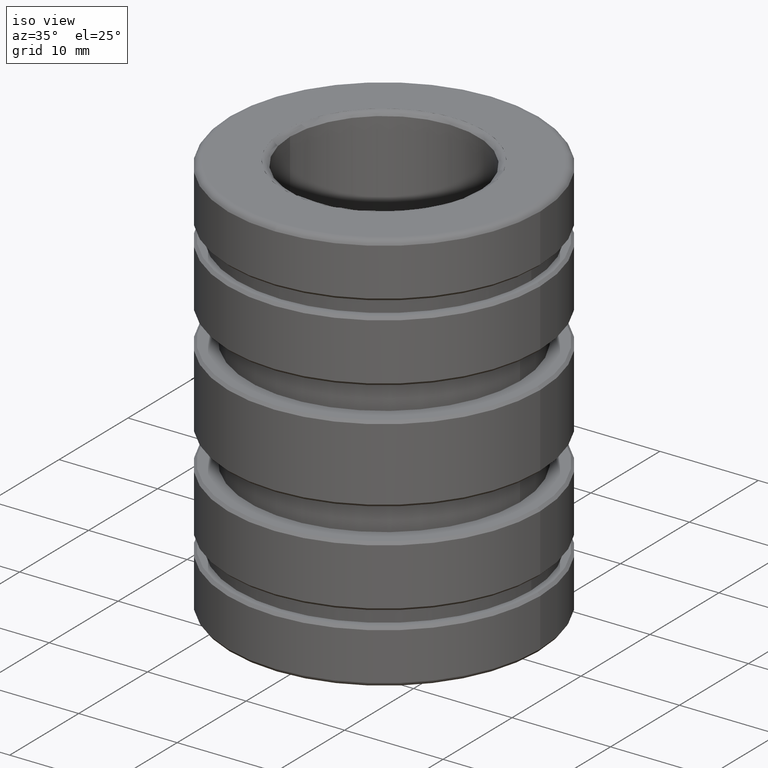
[diagram: clean part render]
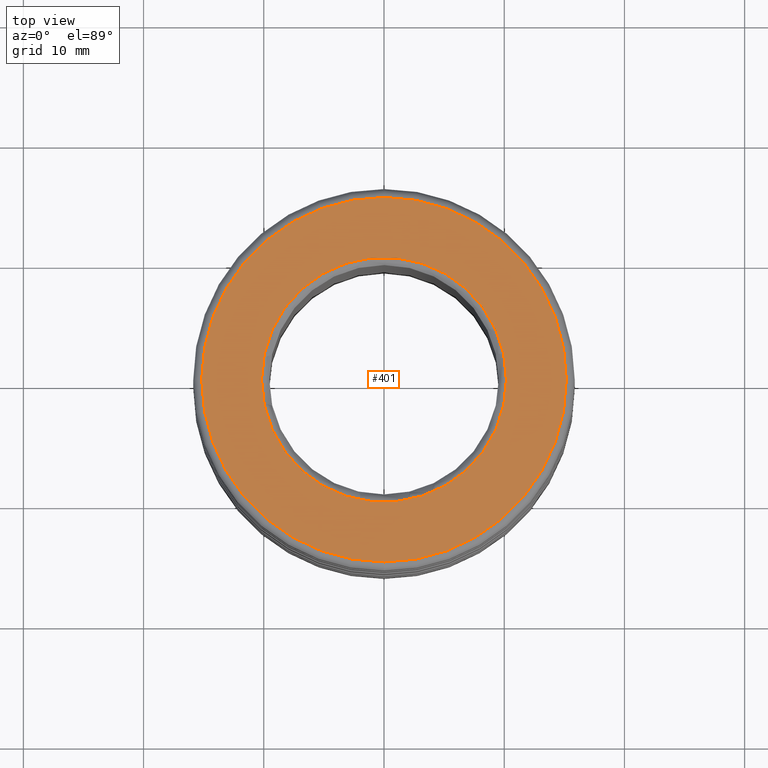
[diagram: tour spotlight — one face highlighted and labeled with its STEP entity id]
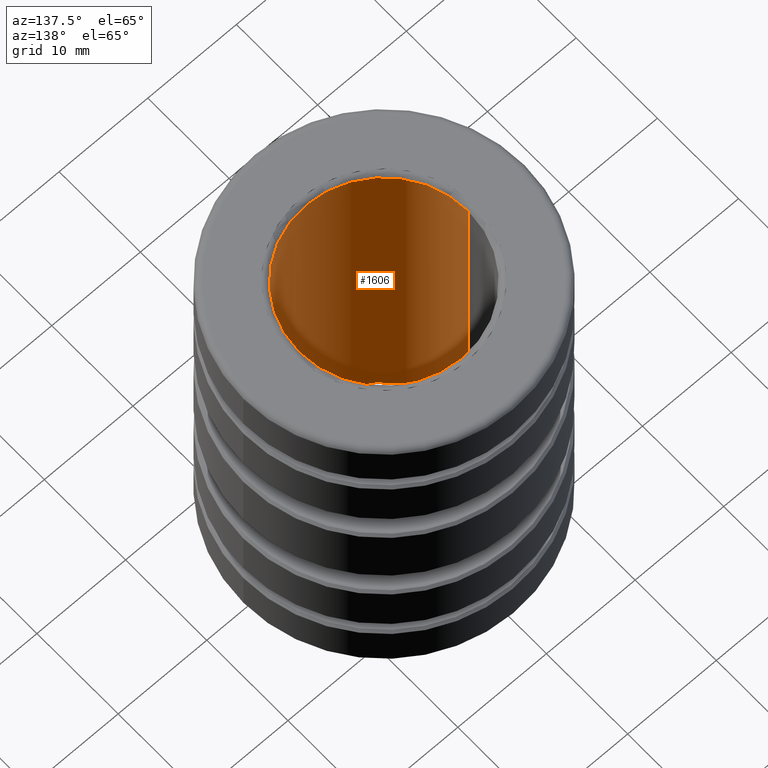
[diagram: tour spotlight — one face highlighted and labeled with its STEP entity id]
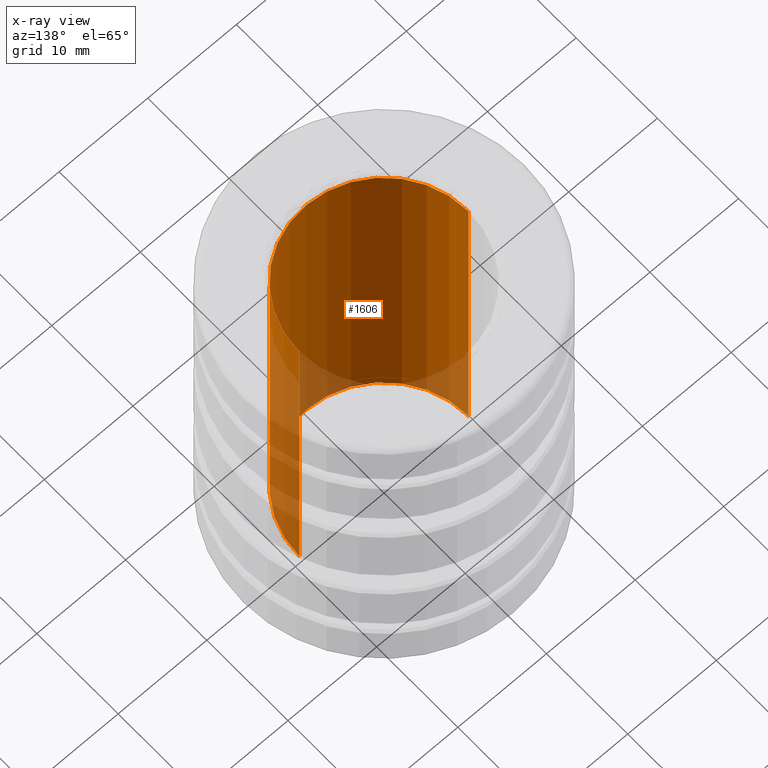
[diagram: x-ray of the same camera — body ghosted, this tour face saturated]
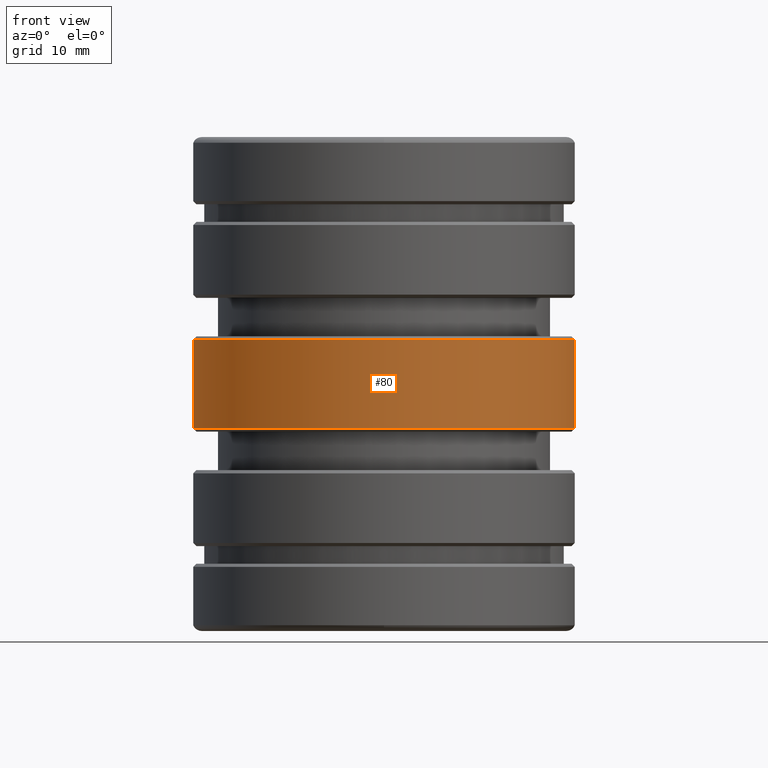
[diagram: tour spotlight — one face highlighted and labeled with its STEP entity id]
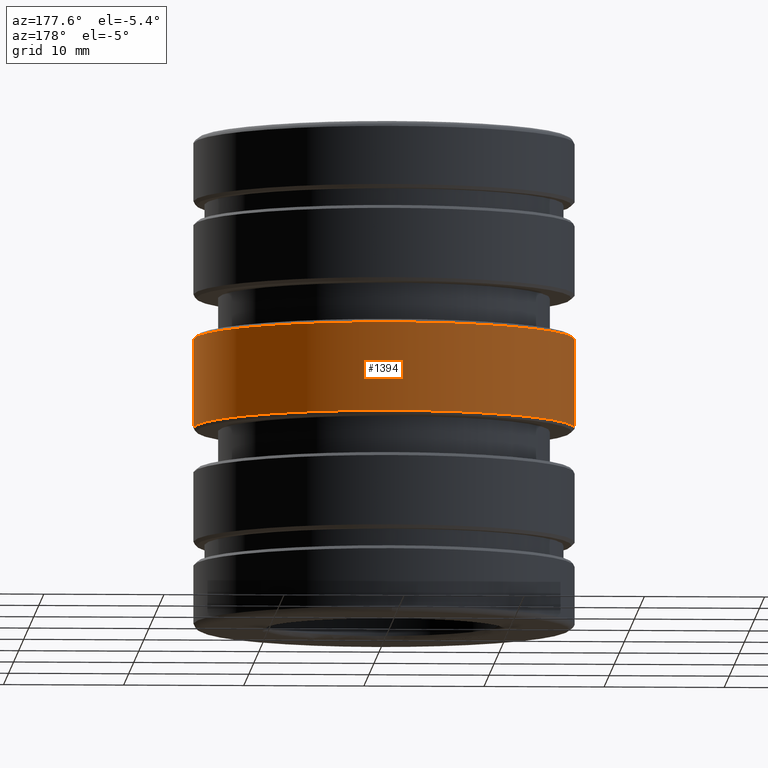
[diagram: tour spotlight — one face highlighted and labeled with its STEP entity id]
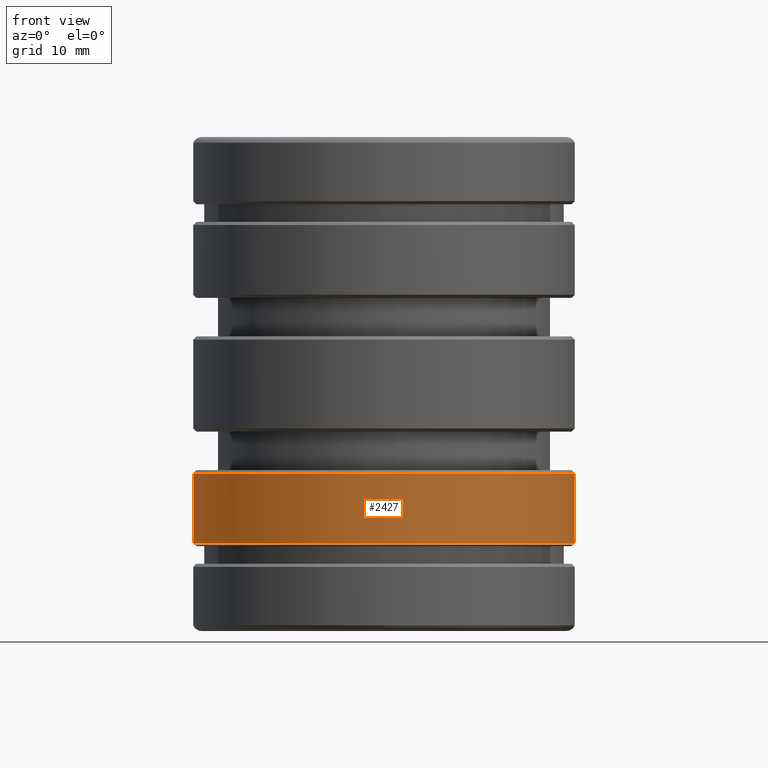
[diagram: tour spotlight — one face highlighted and labeled with its STEP entity id]
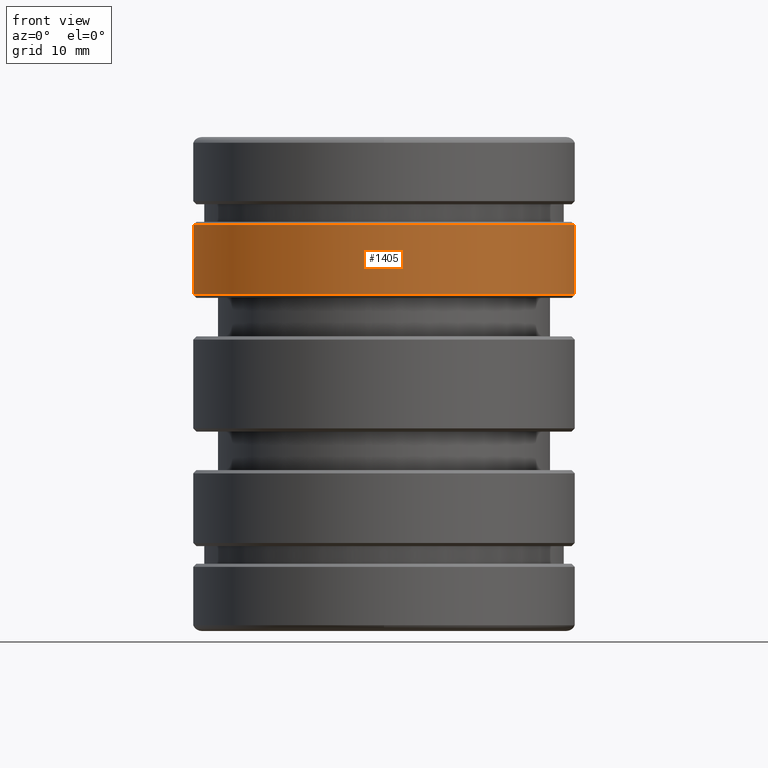
[diagram: tour spotlight — one face highlighted and labeled with its STEP entity id]
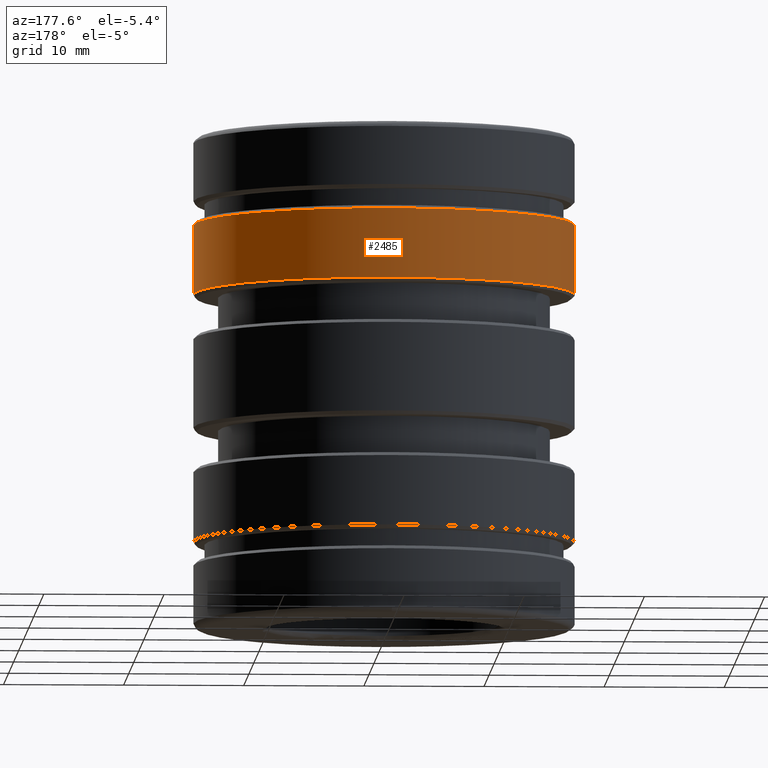
[diagram: tour spotlight — one face highlighted and labeled with its STEP entity id]
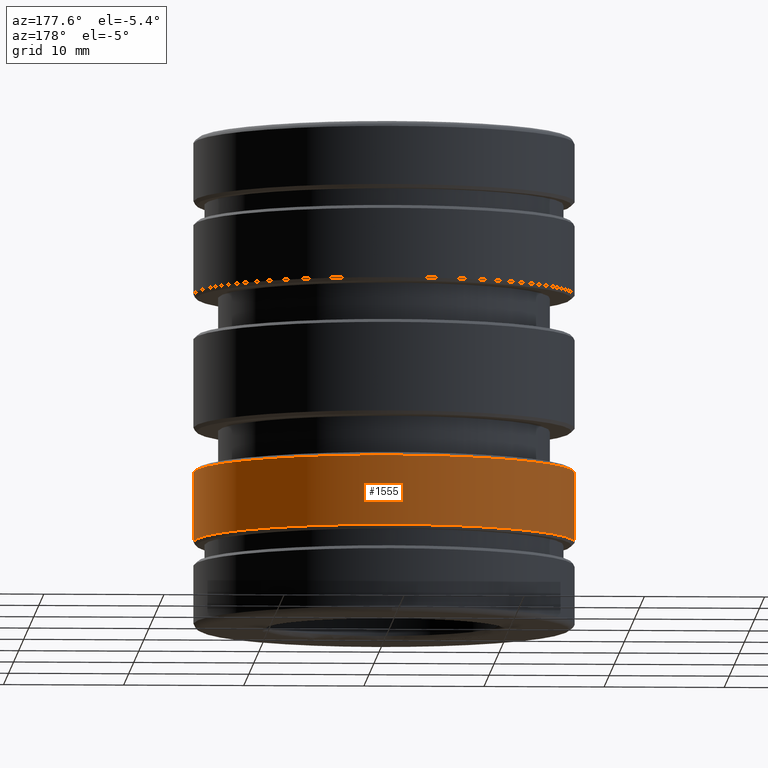
[diagram: tour spotlight — one face highlighted and labeled with its STEP entity id]
A machine part: a face-by-face anatomy tour. The part has 58 B-rep faces; the first image is the clean iso view, then the 8 largest visible faces are spotlighted one at a time (largest first), each with its STEP entity span.

Face 1 — top view, entity #401. In plain terms, the highlighted planar face has unit normal (0, 0, -1).
Definition (entity closure, byte-faithful):
#61 = DIRECTION ( 'NONE',  ( 0.000000000000000000, 1.000000000000000000, 2.288459052284199593E-16 ) ) ;
#123 = CARTESIAN_POINT ( 'NONE',  ( 0.000000000000000000, 0.5968749999999999334, 0.8087499999999999689 ) ) ;
#141 = AXIS2_PLACEMENT_3D ( 'NONE', #1150, #2018, #61 ) ;
#169 = DIRECTION ( 'NONE',  ( 0.000000000000000000, -1.000000000000000000, 0.000000000000000000 ) ) ;
#375 = CARTESIAN_POINT ( 'NONE',  ( 0.000000000000000000, -1.072331330217424556E-16, 0.8087499999999998579 ) ) ;
#378 = AXIS2_PLACEMENT_3D ( 'NONE', #1349, #2638, #2046 ) ;
#401 = ADVANCED_FACE ( 'NONE', ( #2440, #1178 ), #929, .F. ) ;
#474 = AXIS2_PLACEMENT_3D ( 'NONE', #2451, #1843, #2650 ) ;
#483 = ORIENTED_EDGE ( 'NONE', *, *, #1002, .F. ) ;
#535 = CARTESIAN_POINT ( 'NONE',  ( 0.4010000000000000231, 0.000000000000000000, 0.8087499999999998579 ) ) ;
#574 = VERTEX_POINT ( 'NONE', #535 ) ;
#929 = PLANE ( 'NONE',  #378 ) ;
#1002 = EDGE_CURVE ( 'NONE', #1085, #2580, #1651, .T. ) ;
#1085 = VERTEX_POINT ( 'NONE', #123 ) ;
#1150 = CARTESIAN_POINT ( 'NONE',  ( 0.000000000000000000, -1.072331330217424556E-16, 0.8087499999999998579 ) ) ;
#1178 = FACE_OUTER_BOUND ( 'NONE', #2446, .T. ) ;
#1180 = CARTESIAN_POINT ( 'NONE',  ( -0.4010000000000000231, 4.910833664580886580E-17, 0.8087499999999998579 ) ) ;
#1259 = DIRECTION ( 'NONE',  ( -0.000000000000000000, 1.325912000268840659E-16, -1.000000000000000000 ) ) ;
#1303 = ORIENTED_EDGE ( 'NONE', *, *, #2209, .T. ) ;
#1349 = CARTESIAN_POINT ( 'NONE',  ( 0.000000000000000000, 0.5968749999999999334, 0.8087499999999999689 ) ) ;
#1447 = DIRECTION ( 'NONE',  ( 0.000000000000000000, 1.000000000000000000, 2.288459052284199593E-16 ) ) ;
#1475 = ORIENTED_EDGE ( 'NONE', *, *, #2175, .F. ) ;
#1482 = CIRCLE ( 'NONE', #2773, 0.5968750000000000444 ) ;
#1553 = CARTESIAN_POINT ( 'NONE',  ( 7.479530325792460099E-17, -0.5968750000000001554, 0.8087499999999996358 ) ) ;
#1573 = AXIS2_PLACEMENT_3D ( 'NONE', #2494, #2507, #169 ) ;
#1586 = EDGE_CURVE ( 'NONE', #2631, #574, #1695, .T. ) ;
#1651 = CIRCLE ( 'NONE', #141, 0.5968750000000000444 ) ;
#1695 = CIRCLE ( 'NONE', #474, 0.4010000000000000231 ) ;
#1769 = ORIENTED_EDGE ( 'NONE', *, *, #1586, .T. ) ;
#1843 = DIRECTION ( 'NONE',  ( -0.000000000000000000, 1.325912000268840659E-16, -1.000000000000000000 ) ) ;
#2018 = DIRECTION ( 'NONE',  ( -0.000000000000000000, 1.325912000268840659E-16, -1.000000000000000000 ) ) ;
#2046 = DIRECTION ( 'NONE',  ( 0.000000000000000000, 1.000000000000000000, 1.325912000268840659E-16 ) ) ;
#2175 = EDGE_CURVE ( 'NONE', #2580, #1085, #1482, .T. ) ;
#2209 = EDGE_CURVE ( 'NONE', #574, #2631, #2538, .T. ) ;
#2440 = FACE_BOUND ( 'NONE', #2795, .T. ) ;
#2446 = EDGE_LOOP ( 'NONE', ( #483, #1475 ) ) ;
#2451 = CARTESIAN_POINT ( 'NONE',  ( 0.000000000000000000, 2.860426715102623763E-32, 0.8087499999999998579 ) ) ;
#2494 = CARTESIAN_POINT ( 'NONE',  ( 0.000000000000000000, 2.860426715102623763E-32, 0.8087499999999998579 ) ) ;
#2507 = DIRECTION ( 'NONE',  ( -0.000000000000000000, 1.325912000268840659E-16, -1.000000000000000000 ) ) ;
#2538 = CIRCLE ( 'NONE', #1573, 0.4010000000000000231 ) ;
#2580 = VERTEX_POINT ( 'NONE', #1553 ) ;
#2631 = VERTEX_POINT ( 'NONE', #1180 ) ;
#2638 = DIRECTION ( 'NONE',  ( -0.000000000000000000, 1.325912000268840659E-16, -1.000000000000000000 ) ) ;
#2650 = DIRECTION ( 'NONE',  ( 0.000000000000000000, -1.000000000000000000, 0.000000000000000000 ) ) ;
#2773 = AXIS2_PLACEMENT_3D ( 'NONE', #375, #1259, #1447 ) ;
#2795 = EDGE_LOOP ( 'NONE', ( #1303, #1769 ) ) ;

Face 2 — auxiliary view, entity #1606. An x-ray twin of the same camera follows (body ghosted, this face saturated) — the face is partly hidden behind the body. In plain terms, the highlighted cylindrical surface (partial cylindrical patch) has radius 9.5409 mm, axis along (0, 0, -1).
Definition (entity closure, byte-faithful):
#1 = VECTOR ( 'NONE', #2088, 39.37007874015748143 ) ;
#6 = VECTOR ( 'NONE', #53, 39.37007874015748143 ) ;
#21 = EDGE_CURVE ( 'NONE', #1900, #331, #2428, .T. ) ;
#22 = CARTESIAN_POINT ( 'NONE',  ( -0.3756249999999999867, 0.000000000000000000, 0.8087372368683743984 ) ) ;
#53 = DIRECTION ( 'NONE',  ( 0.000000000000000000, 0.000000000000000000, -1.000000000000000000 ) ) ;
#71 = VERTEX_POINT ( 'NONE', #1266 ) ;
#79 = ORIENTED_EDGE ( 'NONE', *, *, #1312, .T. ) ;
#137 = CARTESIAN_POINT ( 'NONE',  ( 0.000000000000000000, -7.007483858838805250E-17, 0.7932736875482777616 ) ) ;
#179 = DIRECTION ( 'NONE',  ( 0.000000000000000000, 1.000000000000000000, 0.000000000000000000 ) ) ;
#211 = CARTESIAN_POINT ( 'NONE',  ( -0.3756249999999999867, 0.000000000000000000, 0.7932736875482777616 ) ) ;
#258 = EDGE_CURVE ( 'NONE', #1208, #71, #2239, .T. ) ;
#293 = ORIENTED_EDGE ( 'NONE', *, *, #258, .T. ) ;
#306 = ORIENTED_EDGE ( 'NONE', *, *, #2034, .F. ) ;
#331 = VERTEX_POINT ( 'NONE', #211 ) ;
#428 = AXIS2_PLACEMENT_3D ( 'NONE', #2028, #889, #731 ) ;
#459 = VERTEX_POINT ( 'NONE', #1914 ) ;
#463 = DIRECTION ( 'NONE',  ( -0.000000000000000000, 1.224646799147352961E-16, -1.000000000000000000 ) ) ;
#562 = LINE ( 'NONE', #2296, #1 ) ;
#591 = DIRECTION ( 'NONE',  ( -1.000000000000000000, 0.000000000000000000, 0.000000000000000000 ) ) ;
#638 = CARTESIAN_POINT ( 'NONE',  ( 0.000000000000000000, 0.000000000000000000, 0.8087372368683743984 ) ) ;
#706 = CARTESIAN_POINT ( 'NONE',  ( 0.000000000000000000, -7.007483858838805250E-17, 0.7932736875482777616 ) ) ;
#726 = FACE_OUTER_BOUND ( 'NONE', #1174, .T. ) ;
#731 = DIRECTION ( 'NONE',  ( 0.000000000000000000, 1.000000000000000000, 0.000000000000000000 ) ) ;
#889 = DIRECTION ( 'NONE',  ( -0.000000000000000000, -1.224646799147352961E-16, -1.000000000000000000 ) ) ;
#1039 = DIRECTION ( 'NONE',  ( -0.000000000000000000, 1.224646799147352961E-16, -1.000000000000000000 ) ) ;
#1078 = EDGE_CURVE ( 'NONE', #459, #1208, #562, .T. ) ;
#1174 = EDGE_LOOP ( 'NONE', ( #306, #2112, #293, #79, #2043, #1547 ) ) ;
#1197 = CIRCLE ( 'NONE', #428, 0.3756249999999999867 ) ;
#1208 = VERTEX_POINT ( 'NONE', #2750 ) ;
#1266 = CARTESIAN_POINT ( 'NONE',  ( -4.755456601939066563E-17, -0.3756250000000000422, -0.7932736875482777616 ) ) ;
#1312 = EDGE_CURVE ( 'NONE', #71, #2186, #1197, .T. ) ;
#1313 = EDGE_CURVE ( 'NONE', #331, #2186, #1983, .T. ) ;
#1419 = AXIS2_PLACEMENT_3D ( 'NONE', #2508, #1918, #2082 ) ;
#1547 = ORIENTED_EDGE ( 'NONE', *, *, #21, .F. ) ;
#1606 = ADVANCED_FACE ( 'NONE', ( #726 ), #2688, .F. ) ;
#1660 = CIRCLE ( 'NONE', #2718, 0.3756249999999999867 ) ;
#1900 = VERTEX_POINT ( 'NONE', #2184 ) ;
#1914 = CARTESIAN_POINT ( 'NONE',  ( 0.3756249999999999867, 4.600079539297244081E-17, 0.7932736875482777616 ) ) ;
#1918 = DIRECTION ( 'NONE',  ( -0.000000000000000000, -1.224646799147352961E-16, -1.000000000000000000 ) ) ;
#1933 = AXIS2_PLACEMENT_3D ( 'NONE', #137, #1039, #179 ) ;
#1983 = LINE ( 'NONE', #22, #6 ) ;
#2028 = CARTESIAN_POINT ( 'NONE',  ( 0.000000000000000000, -7.007483858838805250E-17, -0.7932736875482777616 ) ) ;
#2034 = EDGE_CURVE ( 'NONE', #459, #1900, #1660, .T. ) ;
#2043 = ORIENTED_EDGE ( 'NONE', *, *, #1313, .F. ) ;
#2082 = DIRECTION ( 'NONE',  ( 0.000000000000000000, 1.000000000000000000, 0.000000000000000000 ) ) ;
#2088 = DIRECTION ( 'NONE',  ( 0.000000000000000000, 0.000000000000000000, -1.000000000000000000 ) ) ;
#2101 = AXIS2_PLACEMENT_3D ( 'NONE', #638, #2113, #591 ) ;
#2112 = ORIENTED_EDGE ( 'NONE', *, *, #1078, .T. ) ;
#2113 = DIRECTION ( 'NONE',  ( 0.000000000000000000, 0.000000000000000000, -1.000000000000000000 ) ) ;
#2184 = CARTESIAN_POINT ( 'NONE',  ( 4.755456601939066563E-17, -0.3756250000000000422, 0.7932736875482777616 ) ) ;
#2186 = VERTEX_POINT ( 'NONE', #2346 ) ;
#2239 = CIRCLE ( 'NONE', #1419, 0.3756249999999999867 ) ;
#2253 = DIRECTION ( 'NONE',  ( 0.000000000000000000, 1.000000000000000000, 0.000000000000000000 ) ) ;
#2296 = CARTESIAN_POINT ( 'NONE',  ( 0.3756249999999999867, 4.600079539297244697E-17, 0.8087372368683743984 ) ) ;
#2346 = CARTESIAN_POINT ( 'NONE',  ( -0.3756249999999999867, 0.000000000000000000, -0.7932736875482777616 ) ) ;
#2428 = CIRCLE ( 'NONE', #1933, 0.3756249999999999867 ) ;
#2508 = CARTESIAN_POINT ( 'NONE',  ( 0.000000000000000000, -7.007483858838805250E-17, -0.7932736875482777616 ) ) ;
#2688 = CYLINDRICAL_SURFACE ( 'NONE', #2101, 0.3756249999999999867 ) ;
#2718 = AXIS2_PLACEMENT_3D ( 'NONE', #706, #463, #2253 ) ;
#2750 = CARTESIAN_POINT ( 'NONE',  ( 0.3756249999999999867, 4.600079539297244081E-17, -0.7932736875482777616 ) ) ;

Face 3 — front view, entity #80. In plain terms, the highlighted cylindrical surface (partial cylindrical patch) has radius 15.8655 mm, axis along (0, 0, 1).
Definition (entity closure, byte-faithful):
#17 = DIRECTION ( 'NONE',  ( -1.000000000000000000, 0.000000000000000000, 0.000000000000000000 ) ) ;
#80 = ADVANCED_FACE ( 'NONE', ( #839 ), #2199, .T. ) ;
#143 = VERTEX_POINT ( 'NONE', #2430 ) ;
#186 = ORIENTED_EDGE ( 'NONE', *, *, #1723, .T. ) ;
#210 = CARTESIAN_POINT ( 'NONE',  ( 0.6246249999999999858, 0.000000000000000000, -0.8087499999999999689 ) ) ;
#299 = EDGE_CURVE ( 'NONE', #1262, #1808, #1875, .T. ) ;
#379 = CIRCLE ( 'NONE', #825, 0.6246249999999999858 ) ;
#393 = CARTESIAN_POINT ( 'NONE',  ( 0.6246249999999999858, 7.649450069174155443E-17, 0.1454999999999997407 ) ) ;
#432 = LINE ( 'NONE', #210, #2328 ) ;
#488 = DIRECTION ( 'NONE',  ( -0.000000000000000000, -0.000000000000000000, 1.000000000000000000 ) ) ;
#508 = EDGE_LOOP ( 'NONE', ( #1280, #1163, #186, #996 ) ) ;
#800 = DIRECTION ( 'NONE',  ( -0.000000000000000000, -0.000000000000000000, 1.000000000000000000 ) ) ;
#825 = AXIS2_PLACEMENT_3D ( 'NONE', #2559, #2798, #1099 ) ;
#839 = FACE_OUTER_BOUND ( 'NONE', #508, .T. ) ;
#888 = CARTESIAN_POINT ( 'NONE',  ( 0.000000000000000000, 0.000000000000000000, -0.8087499999999999689 ) ) ;
#996 = ORIENTED_EDGE ( 'NONE', *, *, #1815, .F. ) ;
#1099 = DIRECTION ( 'NONE',  ( 1.000000000000000000, 0.000000000000000000, 0.000000000000000000 ) ) ;
#1159 = CIRCLE ( 'NONE', #2674, 0.6246249999999999858 ) ;
#1163 = ORIENTED_EDGE ( 'NONE', *, *, #1483, .F. ) ;
#1262 = VERTEX_POINT ( 'NONE', #2609 ) ;
#1280 = ORIENTED_EDGE ( 'NONE', *, *, #299, .F. ) ;
#1305 = DIRECTION ( 'NONE',  ( 1.000000000000000000, 0.000000000000000000, 0.000000000000000000 ) ) ;
#1483 = EDGE_CURVE ( 'NONE', #143, #1262, #379, .T. ) ;
#1486 = CARTESIAN_POINT ( 'NONE',  ( -0.6246249999999999858, 7.649450069174152978E-17, -0.8087499999999999689 ) ) ;
#1527 = AXIS2_PLACEMENT_3D ( 'NONE', #888, #1720, #1305 ) ;
#1720 = DIRECTION ( 'NONE',  ( -0.000000000000000000, -0.000000000000000000, 1.000000000000000000 ) ) ;
#1723 = EDGE_CURVE ( 'NONE', #143, #1890, #432, .T. ) ;
#1770 = CARTESIAN_POINT ( 'NONE',  ( 0.000000000000000000, 0.000000000000000000, 0.1454999999999997407 ) ) ;
#1808 = VERTEX_POINT ( 'NONE', #2796 ) ;
#1815 = EDGE_CURVE ( 'NONE', #1808, #1890, #1159, .T. ) ;
#1875 = LINE ( 'NONE', #1486, #2366 ) ;
#1890 = VERTEX_POINT ( 'NONE', #393 ) ;
#2199 = CYLINDRICAL_SURFACE ( 'NONE', #1527, 0.6246249999999999858 ) ;
#2328 = VECTOR ( 'NONE', #2636, 39.37007874015748143 ) ;
#2366 = VECTOR ( 'NONE', #800, 39.37007874015748143 ) ;
#2430 = CARTESIAN_POINT ( 'NONE',  ( 0.6246249999999999858, 0.000000000000000000, -0.1454999999999996851 ) ) ;
#2559 = CARTESIAN_POINT ( 'NONE',  ( 0.000000000000000000, 0.000000000000000000, -0.1454999999999996851 ) ) ;
#2609 = CARTESIAN_POINT ( 'NONE',  ( -0.6246249999999999858, 7.649450069174152978E-17, -0.1454999999999996851 ) ) ;
#2636 = DIRECTION ( 'NONE',  ( -0.000000000000000000, -0.000000000000000000, 1.000000000000000000 ) ) ;
#2674 = AXIS2_PLACEMENT_3D ( 'NONE', #1770, #488, #17 ) ;
#2796 = CARTESIAN_POINT ( 'NONE',  ( -0.6246249999999999858, 0.000000000000000000, 0.1454999999999997407 ) ) ;
#2798 = DIRECTION ( 'NONE',  ( -0.000000000000000000, -0.000000000000000000, -1.000000000000000000 ) ) ;

Face 4 — auxiliary view, entity #1394. In plain terms, the highlighted cylindrical surface (partial cylindrical patch) has radius 15.8655 mm, axis along (0, 0, 1).
Definition (entity closure, byte-faithful):
#85 = CIRCLE ( 'NONE', #2706, 0.6246249999999999858 ) ;
#143 = VERTEX_POINT ( 'NONE', #2430 ) ;
#210 = CARTESIAN_POINT ( 'NONE',  ( 0.6246249999999999858, 0.000000000000000000, -0.8087499999999999689 ) ) ;
#270 = CARTESIAN_POINT ( 'NONE',  ( 0.000000000000000000, 0.000000000000000000, 0.1454999999999997407 ) ) ;
#299 = EDGE_CURVE ( 'NONE', #1262, #1808, #1875, .T. ) ;
#353 = DIRECTION ( 'NONE',  ( -0.000000000000000000, -0.000000000000000000, 1.000000000000000000 ) ) ;
#393 = CARTESIAN_POINT ( 'NONE',  ( 0.6246249999999999858, 7.649450069174155443E-17, 0.1454999999999997407 ) ) ;
#432 = LINE ( 'NONE', #210, #2328 ) ;
#766 = CYLINDRICAL_SURFACE ( 'NONE', #2099, 0.6246249999999999858 ) ;
#800 = DIRECTION ( 'NONE',  ( -0.000000000000000000, -0.000000000000000000, 1.000000000000000000 ) ) ;
#904 = EDGE_CURVE ( 'NONE', #1262, #143, #85, .T. ) ;
#949 = DIRECTION ( 'NONE',  ( -1.000000000000000000, 0.000000000000000000, 0.000000000000000000 ) ) ;
#953 = DIRECTION ( 'NONE',  ( -0.000000000000000000, -0.000000000000000000, -1.000000000000000000 ) ) ;
#1127 = ORIENTED_EDGE ( 'NONE', *, *, #299, .T. ) ;
#1262 = VERTEX_POINT ( 'NONE', #2609 ) ;
#1394 = ADVANCED_FACE ( 'NONE', ( #1430 ), #766, .T. ) ;
#1430 = FACE_OUTER_BOUND ( 'NONE', #2371, .T. ) ;
#1486 = CARTESIAN_POINT ( 'NONE',  ( -0.6246249999999999858, 7.649450069174152978E-17, -0.8087499999999999689 ) ) ;
#1551 = AXIS2_PLACEMENT_3D ( 'NONE', #270, #1579, #949 ) ;
#1579 = DIRECTION ( 'NONE',  ( -0.000000000000000000, -0.000000000000000000, 1.000000000000000000 ) ) ;
#1723 = EDGE_CURVE ( 'NONE', #143, #1890, #432, .T. ) ;
#1808 = VERTEX_POINT ( 'NONE', #2796 ) ;
#1860 = CARTESIAN_POINT ( 'NONE',  ( 0.000000000000000000, 0.000000000000000000, -0.8087499999999999689 ) ) ;
#1875 = LINE ( 'NONE', #1486, #2366 ) ;
#1890 = VERTEX_POINT ( 'NONE', #393 ) ;
#2099 = AXIS2_PLACEMENT_3D ( 'NONE', #1860, #353, #2467 ) ;
#2190 = CIRCLE ( 'NONE', #1551, 0.6246249999999999858 ) ;
#2257 = DIRECTION ( 'NONE',  ( 1.000000000000000000, 0.000000000000000000, 0.000000000000000000 ) ) ;
#2328 = VECTOR ( 'NONE', #2636, 39.37007874015748143 ) ;
#2330 = ORIENTED_EDGE ( 'NONE', *, *, #904, .F. ) ;
#2366 = VECTOR ( 'NONE', #800, 39.37007874015748143 ) ;
#2371 = EDGE_LOOP ( 'NONE', ( #2330, #1127, #2542, #2735 ) ) ;
#2390 = EDGE_CURVE ( 'NONE', #1890, #1808, #2190, .T. ) ;
#2430 = CARTESIAN_POINT ( 'NONE',  ( 0.6246249999999999858, 0.000000000000000000, -0.1454999999999996851 ) ) ;
#2467 = DIRECTION ( 'NONE',  ( 1.000000000000000000, 0.000000000000000000, 0.000000000000000000 ) ) ;
#2542 = ORIENTED_EDGE ( 'NONE', *, *, #2390, .F. ) ;
#2605 = CARTESIAN_POINT ( 'NONE',  ( 0.000000000000000000, 0.000000000000000000, -0.1454999999999996851 ) ) ;
#2609 = CARTESIAN_POINT ( 'NONE',  ( -0.6246249999999999858, 7.649450069174152978E-17, -0.1454999999999996851 ) ) ;
#2636 = DIRECTION ( 'NONE',  ( -0.000000000000000000, -0.000000000000000000, 1.000000000000000000 ) ) ;
#2706 = AXIS2_PLACEMENT_3D ( 'NONE', #2605, #953, #2257 ) ;
#2735 = ORIENTED_EDGE ( 'NONE', *, *, #1723, .F. ) ;
#2796 = CARTESIAN_POINT ( 'NONE',  ( -0.6246249999999999858, 0.000000000000000000, 0.1454999999999997407 ) ) ;

Face 5 — front view, entity #2427. In plain terms, the highlighted cylindrical surface (partial cylindrical patch) has radius 15.8655 mm, axis along (0, 0, 1).
Definition (entity closure, byte-faithful):
#2 = DIRECTION ( 'NONE',  ( 1.000000000000000000, 0.000000000000000000, 0.000000000000000000 ) ) ;
#87 = EDGE_CURVE ( 'NONE', #1481, #93, #835, .T. ) ;
#93 = VERTEX_POINT ( 'NONE', #2627 ) ;
#227 = DIRECTION ( 'NONE',  ( -1.000000000000000000, 0.000000000000000000, 0.000000000000000000 ) ) ;
#524 = EDGE_CURVE ( 'NONE', #534, #1101, #1243, .T. ) ;
#534 = VERTEX_POINT ( 'NONE', #637 ) ;
#555 = FACE_OUTER_BOUND ( 'NONE', #2173, .T. ) ;
#597 = CYLINDRICAL_SURFACE ( 'NONE', #1910, 0.6246249999999999858 ) ;
#637 = CARTESIAN_POINT ( 'NONE',  ( 0.6246249999999999858, 0.000000000000000000, -0.5204999999999996296 ) ) ;
#673 = CARTESIAN_POINT ( 'NONE',  ( -0.6246249999999999858, 7.649450069174152978E-17, -0.8087499999999999689 ) ) ;
#730 = EDGE_CURVE ( 'NONE', #1101, #1481, #2388, .T. ) ;
#835 = CIRCLE ( 'NONE', #1885, 0.6246249999999999858 ) ;
#865 = DIRECTION ( 'NONE',  ( -0.000000000000000000, -0.000000000000000000, 1.000000000000000000 ) ) ;
#934 = DIRECTION ( 'NONE',  ( -0.000000000000000000, -0.000000000000000000, 1.000000000000000000 ) ) ;
#1030 = CARTESIAN_POINT ( 'NONE',  ( -0.6246249999999999858, 7.649450069174155443E-17, -0.5204999999999996296 ) ) ;
#1054 = VECTOR ( 'NONE', #2156, 39.37007874015748143 ) ;
#1101 = VERTEX_POINT ( 'NONE', #1030 ) ;
#1202 = EDGE_CURVE ( 'NONE', #534, #93, #2345, .T. ) ;
#1243 = CIRCLE ( 'NONE', #2531, 0.6246249999999999858 ) ;
#1370 = ORIENTED_EDGE ( 'NONE', *, *, #1202, .T. ) ;
#1481 = VERTEX_POINT ( 'NONE', #1938 ) ;
#1542 = CARTESIAN_POINT ( 'NONE',  ( 0.000000000000000000, 0.000000000000000000, -0.2925000000000007594 ) ) ;
#1623 = ORIENTED_EDGE ( 'NONE', *, *, #730, .F. ) ;
#1634 = ORIENTED_EDGE ( 'NONE', *, *, #524, .F. ) ;
#1667 = DIRECTION ( 'NONE',  ( 1.000000000000000000, 0.000000000000000000, 0.000000000000000000 ) ) ;
#1738 = CARTESIAN_POINT ( 'NONE',  ( 0.6246249999999999858, 0.000000000000000000, -0.8087499999999999689 ) ) ;
#1745 = CARTESIAN_POINT ( 'NONE',  ( 0.000000000000000000, 0.000000000000000000, -0.5204999999999996296 ) ) ;
#1885 = AXIS2_PLACEMENT_3D ( 'NONE', #1542, #865, #227 ) ;
#1910 = AXIS2_PLACEMENT_3D ( 'NONE', #2489, #2084, #1667 ) ;
#1938 = CARTESIAN_POINT ( 'NONE',  ( -0.6246249999999999858, 7.649450069174152978E-17, -0.2925000000000007594 ) ) ;
#1949 = ORIENTED_EDGE ( 'NONE', *, *, #87, .F. ) ;
#2084 = DIRECTION ( 'NONE',  ( -0.000000000000000000, -0.000000000000000000, 1.000000000000000000 ) ) ;
#2156 = DIRECTION ( 'NONE',  ( -0.000000000000000000, -0.000000000000000000, 1.000000000000000000 ) ) ;
#2173 = EDGE_LOOP ( 'NONE', ( #1623, #1634, #1370, #1949 ) ) ;
#2345 = LINE ( 'NONE', #1738, #1054 ) ;
#2351 = DIRECTION ( 'NONE',  ( -0.000000000000000000, -0.000000000000000000, -1.000000000000000000 ) ) ;
#2388 = LINE ( 'NONE', #673, #2569 ) ;
#2427 = ADVANCED_FACE ( 'NONE', ( #555 ), #597, .T. ) ;
#2489 = CARTESIAN_POINT ( 'NONE',  ( 0.000000000000000000, 0.000000000000000000, -0.8087499999999999689 ) ) ;
#2531 = AXIS2_PLACEMENT_3D ( 'NONE', #1745, #2351, #2 ) ;
#2569 = VECTOR ( 'NONE', #934, 39.37007874015748143 ) ;
#2627 = CARTESIAN_POINT ( 'NONE',  ( 0.6246249999999999858, 0.000000000000000000, -0.2925000000000007594 ) ) ;

Face 6 — front view, entity #1405. In plain terms, the highlighted cylindrical surface (partial cylindrical patch) has radius 15.8655 mm, axis along (0, 0, 1).
Definition (entity closure, byte-faithful):
#171 = CARTESIAN_POINT ( 'NONE',  ( 0.000000000000000000, 0.000000000000000000, 0.5204999999999998517 ) ) ;
#189 = DIRECTION ( 'NONE',  ( -1.000000000000000000, 0.000000000000000000, 0.000000000000000000 ) ) ;
#530 = FACE_OUTER_BOUND ( 'NONE', #891, .T. ) ;
#738 = VECTOR ( 'NONE', #2221, 39.37007874015748143 ) ;
#796 = DIRECTION ( 'NONE',  ( -0.000000000000000000, -0.000000000000000000, 1.000000000000000000 ) ) ;
#823 = LINE ( 'NONE', #1032, #1212 ) ;
#891 = EDGE_LOOP ( 'NONE', ( #1207, #2308, #1227, #2138 ) ) ;
#932 = CARTESIAN_POINT ( 'NONE',  ( -0.6246249999999999858, 7.649450069174152978E-17, -0.8087499999999999689 ) ) ;
#1022 = EDGE_CURVE ( 'NONE', #2277, #1089, #1194, .T. ) ;
#1032 = CARTESIAN_POINT ( 'NONE',  ( 0.6246249999999999858, 0.000000000000000000, -0.8087499999999999689 ) ) ;
#1089 = VERTEX_POINT ( 'NONE', #2683 ) ;
#1153 = AXIS2_PLACEMENT_3D ( 'NONE', #2767, #1666, #1470 ) ;
#1194 = CIRCLE ( 'NONE', #1562, 0.6246249999999999858 ) ;
#1207 = ORIENTED_EDGE ( 'NONE', *, *, #2513, .F. ) ;
#1212 = VECTOR ( 'NONE', #796, 39.37007874015748143 ) ;
#1227 = ORIENTED_EDGE ( 'NONE', *, *, #2131, .T. ) ;
#1285 = VERTEX_POINT ( 'NONE', #2389 ) ;
#1405 = ADVANCED_FACE ( 'NONE', ( #530 ), #2262, .T. ) ;
#1456 = DIRECTION ( 'NONE',  ( 1.000000000000000000, 0.000000000000000000, 0.000000000000000000 ) ) ;
#1470 = DIRECTION ( 'NONE',  ( 1.000000000000000000, 0.000000000000000000, 0.000000000000000000 ) ) ;
#1562 = AXIS2_PLACEMENT_3D ( 'NONE', #2448, #1635, #1456 ) ;
#1635 = DIRECTION ( 'NONE',  ( -0.000000000000000000, -0.000000000000000000, -1.000000000000000000 ) ) ;
#1666 = DIRECTION ( 'NONE',  ( -0.000000000000000000, -0.000000000000000000, 1.000000000000000000 ) ) ;
#1759 = CARTESIAN_POINT ( 'NONE',  ( 0.6246249999999999858, 7.649450069174155443E-17, 0.5204999999999998517 ) ) ;
#1858 = VERTEX_POINT ( 'NONE', #1759 ) ;
#2008 = CIRCLE ( 'NONE', #2411, 0.6246249999999999858 ) ;
#2131 = EDGE_CURVE ( 'NONE', #2277, #1858, #823, .T. ) ;
#2138 = ORIENTED_EDGE ( 'NONE', *, *, #2665, .F. ) ;
#2221 = DIRECTION ( 'NONE',  ( -0.000000000000000000, -0.000000000000000000, 1.000000000000000000 ) ) ;
#2262 = CYLINDRICAL_SURFACE ( 'NONE', #1153, 0.6246249999999999858 ) ;
#2277 = VERTEX_POINT ( 'NONE', #2694 ) ;
#2308 = ORIENTED_EDGE ( 'NONE', *, *, #1022, .F. ) ;
#2350 = DIRECTION ( 'NONE',  ( -0.000000000000000000, -0.000000000000000000, 1.000000000000000000 ) ) ;
#2389 = CARTESIAN_POINT ( 'NONE',  ( -0.6246249999999999858, 0.000000000000000000, 0.5204999999999998517 ) ) ;
#2411 = AXIS2_PLACEMENT_3D ( 'NONE', #171, #2350, #189 ) ;
#2448 = CARTESIAN_POINT ( 'NONE',  ( 0.000000000000000000, 0.000000000000000000, 0.2925000000000002598 ) ) ;
#2513 = EDGE_CURVE ( 'NONE', #1089, #1285, #2607, .T. ) ;
#2607 = LINE ( 'NONE', #932, #738 ) ;
#2665 = EDGE_CURVE ( 'NONE', #1285, #1858, #2008, .T. ) ;
#2683 = CARTESIAN_POINT ( 'NONE',  ( -0.6246249999999999858, 7.649450069174152978E-17, 0.2925000000000002598 ) ) ;
#2694 = CARTESIAN_POINT ( 'NONE',  ( 0.6246249999999999858, 0.000000000000000000, 0.2925000000000002598 ) ) ;
#2767 = CARTESIAN_POINT ( 'NONE',  ( 0.000000000000000000, 0.000000000000000000, -0.8087499999999999689 ) ) ;

Face 7 — auxiliary view, entity #2485. In plain terms, the highlighted cylindrical surface (partial cylindrical patch) has radius 15.8655 mm, axis along (0, 0, 1).
Definition (entity closure, byte-faithful):
#64 = EDGE_CURVE ( 'NONE', #1089, #2277, #2381, .T. ) ;
#101 = CIRCLE ( 'NONE', #1068, 0.6246249999999999858 ) ;
#121 = ORIENTED_EDGE ( 'NONE', *, *, #2104, .F. ) ;
#405 = DIRECTION ( 'NONE',  ( 1.000000000000000000, 0.000000000000000000, 0.000000000000000000 ) ) ;
#619 = CARTESIAN_POINT ( 'NONE',  ( 0.000000000000000000, 0.000000000000000000, 0.2925000000000002598 ) ) ;
#630 = DIRECTION ( 'NONE',  ( -0.000000000000000000, -0.000000000000000000, -1.000000000000000000 ) ) ;
#738 = VECTOR ( 'NONE', #2221, 39.37007874015748143 ) ;
#748 = DIRECTION ( 'NONE',  ( -0.000000000000000000, -0.000000000000000000, 1.000000000000000000 ) ) ;
#796 = DIRECTION ( 'NONE',  ( -0.000000000000000000, -0.000000000000000000, 1.000000000000000000 ) ) ;
#823 = LINE ( 'NONE', #1032, #1212 ) ;
#824 = EDGE_LOOP ( 'NONE', ( #1797, #1954, #121, #1537 ) ) ;
#932 = CARTESIAN_POINT ( 'NONE',  ( -0.6246249999999999858, 7.649450069174152978E-17, -0.8087499999999999689 ) ) ;
#1032 = CARTESIAN_POINT ( 'NONE',  ( 0.6246249999999999858, 0.000000000000000000, -0.8087499999999999689 ) ) ;
#1052 = CARTESIAN_POINT ( 'NONE',  ( 0.000000000000000000, 0.000000000000000000, -0.8087499999999999689 ) ) ;
#1068 = AXIS2_PLACEMENT_3D ( 'NONE', #2667, #748, #1621 ) ;
#1069 = AXIS2_PLACEMENT_3D ( 'NONE', #619, #630, #405 ) ;
#1089 = VERTEX_POINT ( 'NONE', #2683 ) ;
#1212 = VECTOR ( 'NONE', #796, 39.37007874015748143 ) ;
#1285 = VERTEX_POINT ( 'NONE', #2389 ) ;
#1537 = ORIENTED_EDGE ( 'NONE', *, *, #2131, .F. ) ;
#1621 = DIRECTION ( 'NONE',  ( -1.000000000000000000, 0.000000000000000000, 0.000000000000000000 ) ) ;
#1749 = DIRECTION ( 'NONE',  ( 1.000000000000000000, 0.000000000000000000, 0.000000000000000000 ) ) ;
#1759 = CARTESIAN_POINT ( 'NONE',  ( 0.6246249999999999858, 7.649450069174155443E-17, 0.5204999999999998517 ) ) ;
#1797 = ORIENTED_EDGE ( 'NONE', *, *, #64, .F. ) ;
#1858 = VERTEX_POINT ( 'NONE', #1759 ) ;
#1954 = ORIENTED_EDGE ( 'NONE', *, *, #2513, .T. ) ;
#1980 = DIRECTION ( 'NONE',  ( -0.000000000000000000, -0.000000000000000000, 1.000000000000000000 ) ) ;
#2104 = EDGE_CURVE ( 'NONE', #1858, #1285, #101, .T. ) ;
#2131 = EDGE_CURVE ( 'NONE', #2277, #1858, #823, .T. ) ;
#2221 = DIRECTION ( 'NONE',  ( -0.000000000000000000, -0.000000000000000000, 1.000000000000000000 ) ) ;
#2277 = VERTEX_POINT ( 'NONE', #2694 ) ;
#2381 = CIRCLE ( 'NONE', #1069, 0.6246249999999999858 ) ;
#2386 = CYLINDRICAL_SURFACE ( 'NONE', #2748, 0.6246249999999999858 ) ;
#2389 = CARTESIAN_POINT ( 'NONE',  ( -0.6246249999999999858, 0.000000000000000000, 0.5204999999999998517 ) ) ;
#2485 = ADVANCED_FACE ( 'NONE', ( #2799 ), #2386, .T. ) ;
#2513 = EDGE_CURVE ( 'NONE', #1089, #1285, #2607, .T. ) ;
#2607 = LINE ( 'NONE', #932, #738 ) ;
#2667 = CARTESIAN_POINT ( 'NONE',  ( 0.000000000000000000, 0.000000000000000000, 0.5204999999999998517 ) ) ;
#2683 = CARTESIAN_POINT ( 'NONE',  ( -0.6246249999999999858, 7.649450069174152978E-17, 0.2925000000000002598 ) ) ;
#2694 = CARTESIAN_POINT ( 'NONE',  ( 0.6246249999999999858, 0.000000000000000000, 0.2925000000000002598 ) ) ;
#2748 = AXIS2_PLACEMENT_3D ( 'NONE', #1052, #1980, #1749 ) ;
#2799 = FACE_OUTER_BOUND ( 'NONE', #824, .T. ) ;

Face 8 — auxiliary view, entity #1555. In plain terms, the highlighted cylindrical surface (partial cylindrical patch) has radius 15.8655 mm, axis along (0, 0, 1).
Definition (entity closure, byte-faithful):
#35 = DIRECTION ( 'NONE',  ( -1.000000000000000000, 0.000000000000000000, 0.000000000000000000 ) ) ;
#66 = DIRECTION ( 'NONE',  ( 1.000000000000000000, 0.000000000000000000, 0.000000000000000000 ) ) ;
#93 = VERTEX_POINT ( 'NONE', #2627 ) ;
#249 = ORIENTED_EDGE ( 'NONE', *, *, #1600, .F. ) ;
#312 = DIRECTION ( 'NONE',  ( 1.000000000000000000, 0.000000000000000000, 0.000000000000000000 ) ) ;
#482 = CARTESIAN_POINT ( 'NONE',  ( 0.000000000000000000, 0.000000000000000000, -0.2925000000000007594 ) ) ;
#534 = VERTEX_POINT ( 'NONE', #637 ) ;
#540 = CARTESIAN_POINT ( 'NONE',  ( 0.000000000000000000, 0.000000000000000000, -0.8087499999999999689 ) ) ;
#583 = ORIENTED_EDGE ( 'NONE', *, *, #1202, .F. ) ;
#637 = CARTESIAN_POINT ( 'NONE',  ( 0.6246249999999999858, 0.000000000000000000, -0.5204999999999996296 ) ) ;
#673 = CARTESIAN_POINT ( 'NONE',  ( -0.6246249999999999858, 7.649450069174152978E-17, -0.8087499999999999689 ) ) ;
#719 = ORIENTED_EDGE ( 'NONE', *, *, #2080, .F. ) ;
#730 = EDGE_CURVE ( 'NONE', #1101, #1481, #2388, .T. ) ;
#763 = CARTESIAN_POINT ( 'NONE',  ( 0.000000000000000000, 0.000000000000000000, -0.5204999999999996296 ) ) ;
#934 = DIRECTION ( 'NONE',  ( -0.000000000000000000, -0.000000000000000000, 1.000000000000000000 ) ) ;
#1030 = CARTESIAN_POINT ( 'NONE',  ( -0.6246249999999999858, 7.649450069174155443E-17, -0.5204999999999996296 ) ) ;
#1054 = VECTOR ( 'NONE', #2156, 39.37007874015748143 ) ;
#1101 = VERTEX_POINT ( 'NONE', #1030 ) ;
#1156 = AXIS2_PLACEMENT_3D ( 'NONE', #540, #1800, #312 ) ;
#1179 = FACE_OUTER_BOUND ( 'NONE', #1848, .T. ) ;
#1201 = CIRCLE ( 'NONE', #2151, 0.6246249999999999858 ) ;
#1202 = EDGE_CURVE ( 'NONE', #534, #93, #2345, .T. ) ;
#1250 = AXIS2_PLACEMENT_3D ( 'NONE', #482, #1343, #35 ) ;
#1343 = DIRECTION ( 'NONE',  ( -0.000000000000000000, -0.000000000000000000, 1.000000000000000000 ) ) ;
#1481 = VERTEX_POINT ( 'NONE', #1938 ) ;
#1555 = ADVANCED_FACE ( 'NONE', ( #1179 ), #1830, .T. ) ;
#1600 = EDGE_CURVE ( 'NONE', #1101, #534, #1201, .T. ) ;
#1738 = CARTESIAN_POINT ( 'NONE',  ( 0.6246249999999999858, 0.000000000000000000, -0.8087499999999999689 ) ) ;
#1800 = DIRECTION ( 'NONE',  ( -0.000000000000000000, -0.000000000000000000, 1.000000000000000000 ) ) ;
#1830 = CYLINDRICAL_SURFACE ( 'NONE', #1156, 0.6246249999999999858 ) ;
#1848 = EDGE_LOOP ( 'NONE', ( #249, #2134, #719, #583 ) ) ;
#1938 = CARTESIAN_POINT ( 'NONE',  ( -0.6246249999999999858, 7.649450069174152978E-17, -0.2925000000000007594 ) ) ;
#2047 = DIRECTION ( 'NONE',  ( -0.000000000000000000, -0.000000000000000000, -1.000000000000000000 ) ) ;
#2080 = EDGE_CURVE ( 'NONE', #93, #1481, #2464, .T. ) ;
#2134 = ORIENTED_EDGE ( 'NONE', *, *, #730, .T. ) ;
#2151 = AXIS2_PLACEMENT_3D ( 'NONE', #763, #2047, #66 ) ;
#2156 = DIRECTION ( 'NONE',  ( -0.000000000000000000, -0.000000000000000000, 1.000000000000000000 ) ) ;
#2345 = LINE ( 'NONE', #1738, #1054 ) ;
#2388 = LINE ( 'NONE', #673, #2569 ) ;
#2464 = CIRCLE ( 'NONE', #1250, 0.6246249999999999858 ) ;
#2569 = VECTOR ( 'NONE', #934, 39.37007874015748143 ) ;
#2627 = CARTESIAN_POINT ( 'NONE',  ( 0.6246249999999999858, 0.000000000000000000, -0.2925000000000007594 ) ) ;